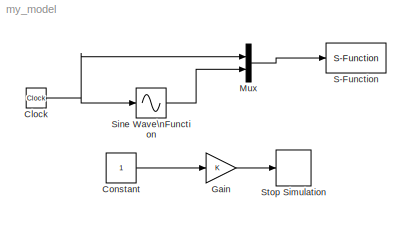
MODEL my_model
KIND model
BLOCK [Clock] Clock
  SID = 1
BLOCK [Constant] Constant
  SID = 2
BLOCK [Gain] Gain
  OutDataTypeStr = Inherit: Inherit via internal rule
  ParamDataTypeStr = Inherit: Inherit via internal rule
  SID = 3
  SaturateOnIntegerOverflow = off
BLOCK [Mux] Mux
  DisplayOption = bar
  Inputs = 2
  Ports = [2, 1]
  SID = 4
BLOCK [S-Function] S-Function
  EnableBusSupport = off
  FunctionName = my_sfunc
  Ports = [1]
  SFcnIsStateOwnerBlock = off
  SFunctionDeploymentMode = off
  SID = 5
BLOCK [Sin] Sine Wave\nFunction
  Ports = [1, 1]
  SID = 6
  SampleTime = 0
  TimeSource = Use external signal
BLOCK [Stop] Stop Simulation
  SID = 7
NET Clock:1 -> Mux:1, Sine Wave\nFunction:1
LINE Constant:1 -> Gain:1
LINE Gain:1 -> Stop Simulation:1
LINE Mux:1 -> S-Function:1
LINE Sine Wave\nFunction:1 -> Mux:2
note: NET lines group one-source signal fan-out (src -> all destinations, sorted); 1:1 wires keep LINE
